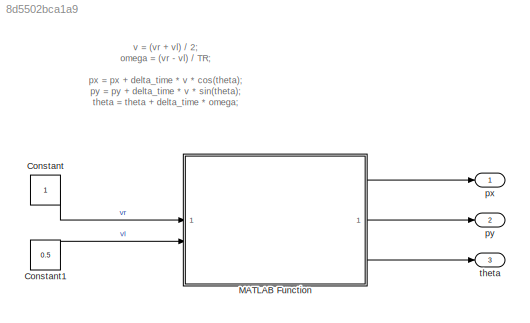
MODEL slx_8d5502bca1a9
KIND model
CONFIG AbsTol = auto
CONFIG EnableMultiTasking = off
CONFIG FixedStep = delta_time
CONFIG MaxStep = auto
CONFIG MinStep = auto
CONFIG RelTol = 1e-3
CONFIG SampleTimeConstraint = Unconstrained
CONFIG SolverName = FixedStepDiscrete
CONFIG StartTime = 0.0
CONFIG StopTime = 10.0
WORKSPACE source: mxarray member
WORKSPACE TR: Simulink.Parameter (value not decoded)
WORKSPACE delta_time: Simulink.Parameter (value not decoded)
BLOCK [Constant] Constant
BLOCK [Constant] Constant1
  Value = 0.5
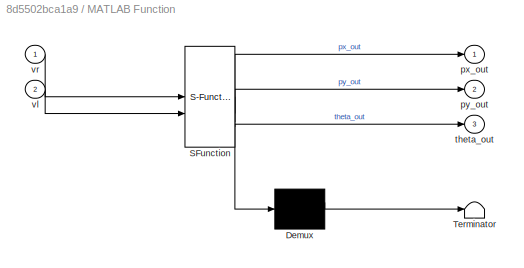
BLOCK [SubSystem] MATLAB Function
  ErrorFcn = Stateflow.Translate.translate
  LibrarySourceBlock = simulink/User-Defined\nFunctions/MATLAB Function
  PermitHierarchicalResolution = ExplicitOnly
  SFBlockType = MATLAB Function
  TreatAsAtomicUnit = on
BLOCK [Demux] MATLAB Function/ Demux 
  Outputs = 1
BLOCK [S-Function] MATLAB Function/ SFunction 
  EnableBusSupport = on
  FunctionName = sf_sfun
  Parameters = TR,delta_time
  PortCounts = [2 4]
  SFcnIsStateOwnerBlock = off
  SFunctionDeploymentMode = off
  Tag = Stateflow S-Function 2
BLOCK [Terminator] MATLAB Function/ Terminator 
BLOCK [Outport] MATLAB Function/px_out
BLOCK [Outport] MATLAB Function/py_out
  Port = 2
BLOCK [Outport] MATLAB Function/theta_out
  Port = 3
BLOCK [Inport] MATLAB Function/vl
  Port = 2
BLOCK [Inport] MATLAB Function/vr
BLOCK [Outport] px
BLOCK [Outport] py
  Port = 2
BLOCK [Outport] theta
  Port = 3
ANNOTATION (root): v = (vr + vl) / 2; omega = (vr - vl) / TR; px = px + delta_time * v * cos(theta); py = py + delta_time * v * sin(theta); theta = theta + delta_time * omega;
LINE Constant1:1 -> MATLAB Function:2
LINE Constant:1 -> MATLAB Function:1
LINE MATLAB Function:1 -> px:1
LINE MATLAB Function:2 -> py:1
LINE MATLAB Function:3 -> theta:1
CHART MATLAB Function states=1 transitions=1
  STATE_LABEL 'eML_blk_kernel()'
  STATE_LABEL 'SCRIPT:\nfunction [px_out, py_out, theta_out] = calc_differential_robot_move(vr, vl, TR, delta_time)\n\npersistent px;\nif isempty(px)\n    px = 0;\nend\npersistent py;\nif isempty(py)\n    py = 0;\nend\npersistent theta;\nif isempty(theta)\n    theta = 0;\nend\nv = (vr + vl) / 2;\nomega = (vr - vl) / TR;\n\npx = px + delta_time * v * cos(theta);\npy = py + delta_time * v * sin(theta);\ntheta = theta + delta_time * o...<+57ch>'
CHART  states=0 transitions=0
